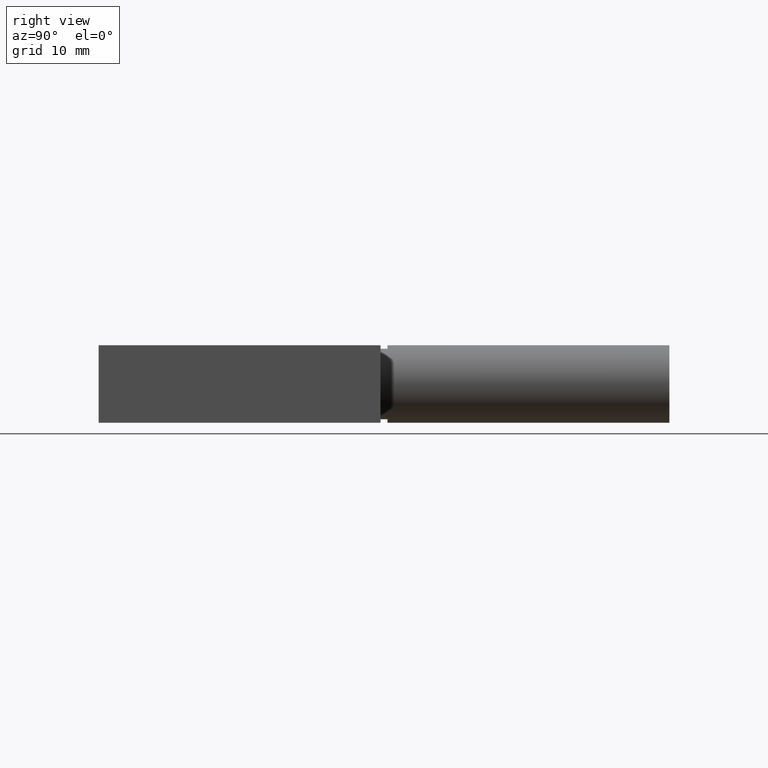
[diagram: clean part render]
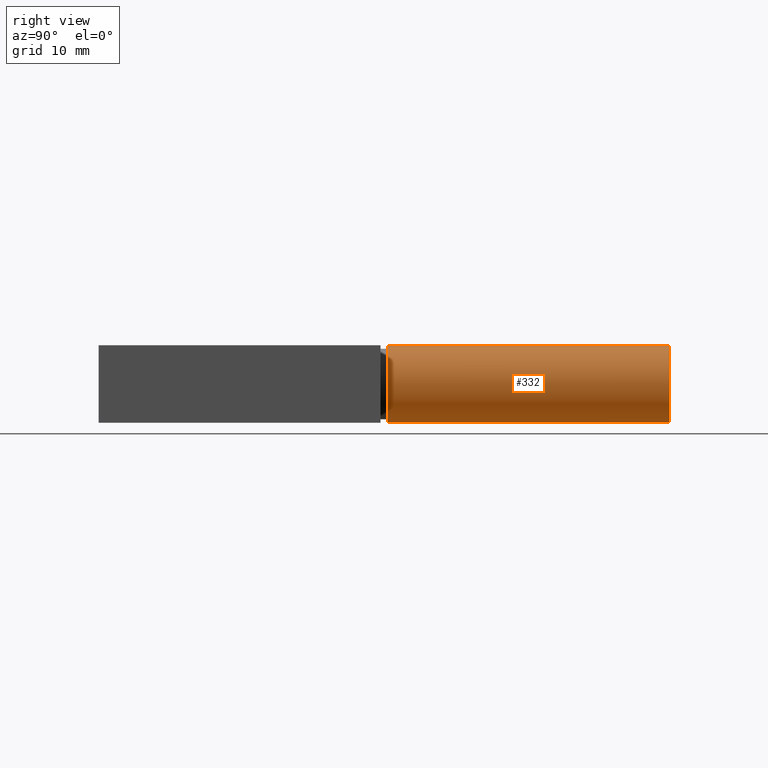
[diagram: same view with one face highlighted and labeled with its STEP entity id]
A machine part, right view. The second image highlights one B-rep face of the part: STEP entity #332.
In plain terms, the highlighted cylindrical surface (partial cylindrical patch) has radius 5.5 mm, axis along (-0, -1, 0).
Its self-contained STEP definition (entity closure, byte-faithful):
#63=FACE_OUTER_BOUND('',#85,.T.);
#85=EDGE_LOOP('',(#246,#247,#248,#249));
#117=LINE('',#627,#137);
#118=LINE('',#630,#138);
#137=VECTOR('',#509,10.);
#138=VECTOR('',#512,10.);
#158=CIRCLE('',#450,5.49998799997604);
#159=CIRCLE('',#451,5.49998799997604);
#178=VERTEX_POINT('',#623);
#179=VERTEX_POINT('',#624);
#180=VERTEX_POINT('',#626);
#181=VERTEX_POINT('',#628);
#205=EDGE_CURVE('',#178,#179,#158,.T.);
#206=EDGE_CURVE('',#180,#179,#117,.T.);
#207=EDGE_CURVE('',#181,#180,#159,.T.);
#208=EDGE_CURVE('',#181,#178,#118,.T.);
#246=ORIENTED_EDGE('',*,*,#205,.T.);
#247=ORIENTED_EDGE('',*,*,#206,.F.);
#248=ORIENTED_EDGE('',*,*,#207,.F.);
#249=ORIENTED_EDGE('',*,*,#208,.T.);
#323=CYLINDRICAL_SURFACE('',#449,5.49998799997604);
#332=ADVANCED_FACE('',(#63),#323,.T.);
#449=AXIS2_PLACEMENT_3D('',#622,#505,#506);
#450=AXIS2_PLACEMENT_3D('',#625,#507,#508);
#451=AXIS2_PLACEMENT_3D('',#629,#510,#511);
#505=DIRECTION('center_axis',(0.,1.,0.));
#506=DIRECTION('ref_axis',(0.,0.,1.));
#507=DIRECTION('center_axis',(0.,-1.,0.));
#508=DIRECTION('ref_axis',(0.,0.,1.));
#509=DIRECTION('',(0.,1.,0.));
#510=DIRECTION('center_axis',(0.,-1.,0.));
#511=DIRECTION('ref_axis',(0.,0.,1.));
#512=DIRECTION('',(0.,1.,0.));
#622=CARTESIAN_POINT('Origin',(8.49989699988602,32.4998549997101,5.99998799997605));
#623=CARTESIAN_POINT('',(8.49989699988602,72.4998549997101,11.4999759999521));
#624=CARTESIAN_POINT('',(8.49989699988602,72.4998549997101,0.500000000000009));
#625=CARTESIAN_POINT('Origin',(8.49989699988602,72.4998549997101,5.99998799997605));
#626=CARTESIAN_POINT('',(8.49989699988602,32.4998549997101,0.500000000000009));
#627=CARTESIAN_POINT('',(8.49989699988602,32.4998549997101,0.500000000000009));
#628=CARTESIAN_POINT('',(8.49989699988602,32.4998549997101,11.4999759999521));
#629=CARTESIAN_POINT('Origin',(8.49989699988602,32.4998549997101,5.99998799997605));
#630=CARTESIAN_POINT('',(8.49989699988602,32.4998549997101,11.4999759999521));